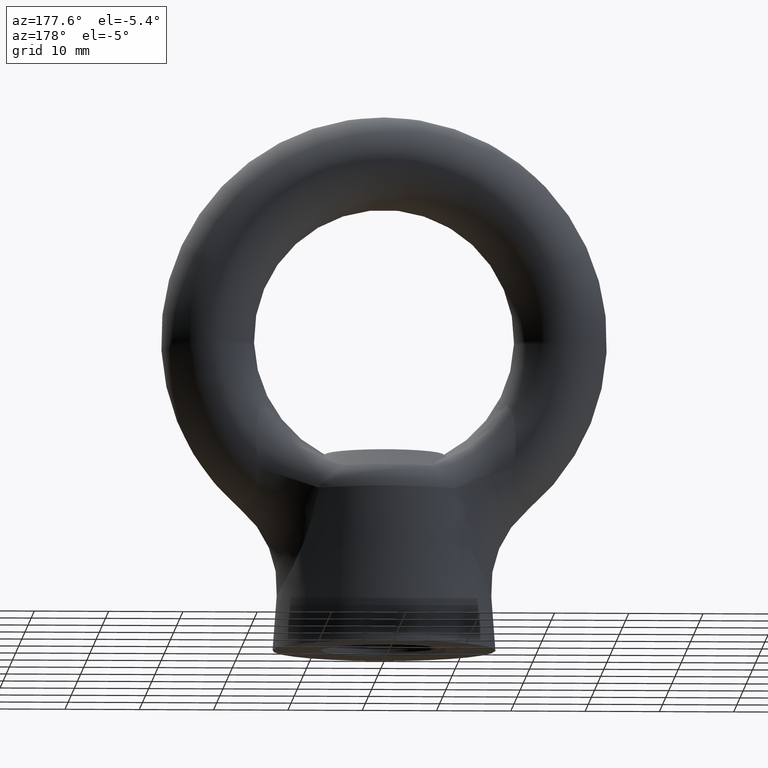
[diagram: clean part render]
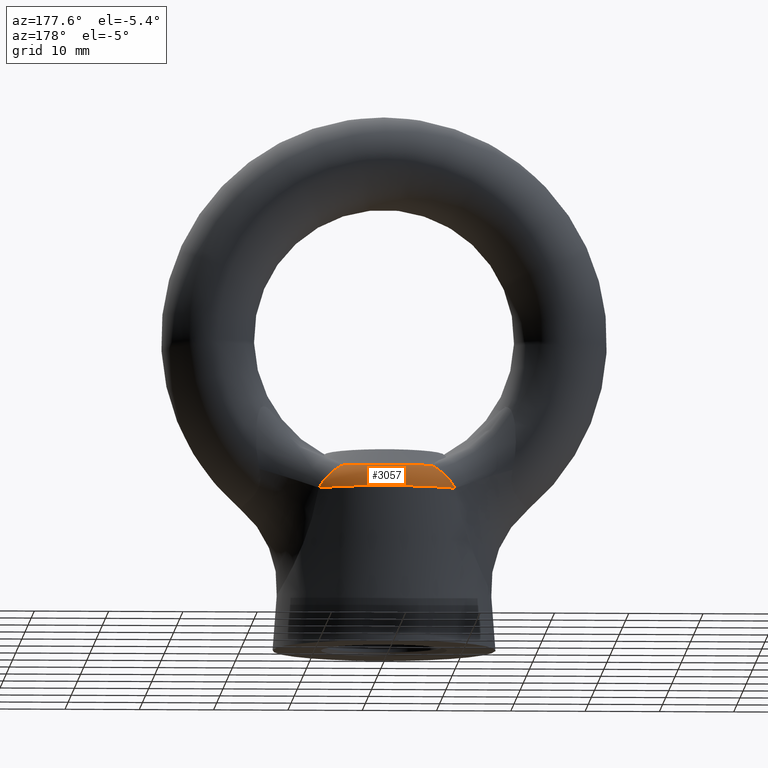
[diagram: same view with one face highlighted and labeled with its STEP entity id]
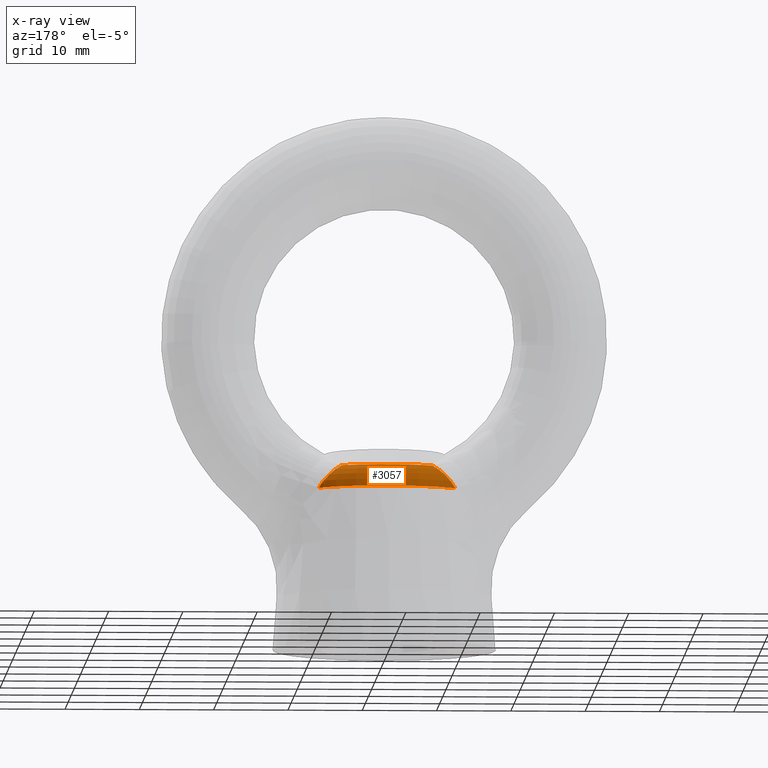
[diagram: x-ray of the same camera — body ghosted, the highlighted face saturated]
A machine part, auxiliary view. The second image highlights one B-rep face of the part: STEP entity #3057.
The next image is the same camera in x-ray: the body ghosted, the highlighted face saturated — about 0% of this face is hidden behind the body in this view.
In plain terms, the highlighted toroidal blend (fillet) surface has major radius 9.4111 mm and minor (blend) radius 4 mm.
Its self-contained STEP definition (entity closure, byte-faithful):
#2033 = CARTESIAN_POINT ( 'NONE',  ( 0.0000000000000000000, 0.0000000000000000000, -21.26815580309095200 ) ) ;
#2035 = FACE_OUTER_BOUND ( 'NONE', #3058, .T. ) ;
#2043 = DIRECTION ( 'NONE',  ( 1.000000000000000000, 0.0000000000000000000, 0.0000000000000000000 ) ) ;
#2044 = DIRECTION ( 'NONE',  ( 0.0000000000000000000, 0.0000000000000000000, -1.000000000000000000 ) ) ;
#2045 = CARTESIAN_POINT ( 'NONE',  ( 0.0000000000000000000, 0.0000000000000000000, -20.96469496878929900 ) ) ;
#2046 = AXIS2_PLACEMENT_3D ( 'NONE', #2045, #2044, #2043 ) ;
#2047 = CIRCLE ( 'NONE', #2046, 13.39953980184924000 ) ;
#2048 = CARTESIAN_POINT ( 'NONE',  ( -6.091302224946269400, 9.873597760385759900, -17.92113412167020000 ) ) ;
#2055 = CARTESIAN_POINT ( 'NONE',  ( -6.091302224946269400, 9.873597760385759900, -17.92113412167020000 ) ) ;
#2056 = CARTESIAN_POINT ( 'NONE',  ( -6.397393152722095500, 10.00106408607315000, -18.09729728697028900 ) ) ;
#2057 = CARTESIAN_POINT ( 'NONE',  ( -6.701572327747802800, 10.08959833450724900, -18.30061343297327900 ) ) ;
#2058 = CARTESIAN_POINT ( 'NONE',  ( -7.285602031763319000, 10.19767155345188700, -18.74639681234385300 ) ) ;
#2059 = CARTESIAN_POINT ( 'NONE',  ( -7.570722019595314700, 10.21761305693335900, -18.99314622535859300 ) ) ;
#2060 = CARTESIAN_POINT ( 'NONE',  ( -8.101800909187010900, 10.19242582766668000, -19.51362963531476800 ) ) ;
#2061 = CARTESIAN_POINT ( 'NONE',  ( -8.348748441032805400, 10.14810822957244500, -19.78733680110206400 ) ) ;
#2062 = CARTESIAN_POINT ( 'NONE',  ( -8.803341005879982400, 9.997566642364468200, -20.36386119696704400 ) ) ;
#2063 = CARTESIAN_POINT ( 'NONE',  ( -9.005828050559891600, 9.892903077930290200, -20.66007135391228600 ) ) ;
#2064 = CARTESIAN_POINT ( 'NONE',  ( -9.180284082713130900, 9.760637840941839700, -20.96469496878929900 ) ) ;
#2066 = B_SPLINE_CURVE_WITH_KNOTS ( 'NONE', 3,
 ( #2113, #2112, #2111, #2110, #2109, #2108, #2107, #2106, #2105, #2104, #2103, #2102 ),
 .UNSPECIFIED., .F., .F.,
 ( 4, 2, 2, 2, 2, 4 ),
 ( 0.0000000000000000000, 0.001122599244185214300, 0.002245198488370428600, 0.002806498110463038600, 0.003367797732555648600, 0.004490396976740872900 ),
 .UNSPECIFIED. ) ;
#2067 = B_SPLINE_CURVE_WITH_KNOTS ( 'NONE', 3,
 ( #2064, #2063, #2062, #2061, #2060, #2059, #2058, #2057, #2056, #2055 ),
 .UNSPECIFIED., .F., .F.,
 ( 4, 2, 2, 2, 4 ),
 ( 3.878959614448864200E-018, 0.001119428802800174000, 0.002238857605600344100, 0.003358286408400516400, 0.004477715211200688200 ),
 .UNSPECIFIED. ) ;
#2068 = DIRECTION ( 'NONE',  ( 1.000000000000000000, 0.0000000000000000000, 0.0000000000000000000 ) ) ;
#2069 = DIRECTION ( 'NONE',  ( 0.0000000000000000000, 0.0000000000000000000, 1.000000000000000000 ) ) ;
#2070 = AXIS2_PLACEMENT_3D ( 'NONE', #2033, #2069, #2068 ) ;
#2071 = TOROIDAL_SURFACE ( 'NONE', #2070, 9.411067472492430100, 4.000000000000000000 ) ;
#2102 = CARTESIAN_POINT ( 'NONE',  ( 9.180284082713130900, 9.760637840941839700, -20.96469496878929900 ) ) ;
#2103 = CARTESIAN_POINT ( 'NONE',  ( 9.005399087260771700, 9.893228299888598100, -20.65932232649706200 ) ) ;
#2104 = CARTESIAN_POINT ( 'NONE',  ( 8.804103475610631300, 9.996923575818149400, -20.36524088649833800 ) ) ;
#2105 = CARTESIAN_POINT ( 'NONE',  ( 8.467294671888829800, 10.10904152639592200, -19.93747822322002200 ) ) ;
#2106 = CARTESIAN_POINT ( 'NONE',  ( 8.349122908357651700, 10.13912403361860200, -19.79717009406563800 ) ) ;
#2107 = CARTESIAN_POINT ( 'NONE',  ( 8.100849187908732300, 10.18396007736597900, -19.52098755213804500 ) ) ;
#2108 = CARTESIAN_POINT ( 'NONE',  ( 7.970793117943436800, 10.19857361528725400, -19.38529932743910300 ) ) ;
#2109 = CARTESIAN_POINT ( 'NONE',  ( 7.571899037100132900, 10.21768699970304100, -18.99417334980136800 ) ) ;
#2110 = CARTESIAN_POINT ( 'NONE',  ( 7.291590021149956700, 10.19852608380935300, -18.75119126987755500 ) ) ;
#2111 = CARTESIAN_POINT ( 'NONE',  ( 6.702326800673501900, 10.08998859543196500, -18.30096796885172600 ) ) ;
#2112 = CARTESIAN_POINT ( 'NONE',  ( 6.398128055171234500, 10.00137012361438800, -18.09772024214432700 ) ) ;
#2113 = CARTESIAN_POINT ( 'NONE',  ( 6.091302224946269400, 9.873597760385751000, -17.92113412167020000 ) ) ;
#2946 = VERTEX_POINT ( 'NONE', #4211 ) ;
#2984 = EDGE_CURVE ( 'NONE', #3159, #3045, #4225, .T. ) ;
#2987 = VERTEX_POINT ( 'NONE', #4154 ) ;
#3045 = VERTEX_POINT ( 'NONE', #2048 ) ;
#3048 = EDGE_CURVE ( 'NONE', #2987, #2946, #2047, .T. ) ;
#3057 = ADVANCED_FACE ( 'NONE', ( #2035 ), #2071, .T. ) ;
#3058 = EDGE_LOOP ( 'NONE', ( #3059, #3060, #3062, #3063 ) ) ;
#3059 = ORIENTED_EDGE ( 'NONE', *, *, #3048, .F. ) ;
#3060 = ORIENTED_EDGE ( 'NONE', *, *, #3061, .T. ) ;
#3061 = EDGE_CURVE ( 'NONE', #2987, #3045, #2067, .T. ) ;
#3062 = ORIENTED_EDGE ( 'NONE', *, *, #2984, .F. ) ;
#3063 = ORIENTED_EDGE ( 'NONE', *, *, #3064, .T. ) ;
#3064 = EDGE_CURVE ( 'NONE', #3159, #2946, #2066, .T. ) ;
#3159 = VERTEX_POINT ( 'NONE', #14938 ) ;
#4154 = CARTESIAN_POINT ( 'NONE',  ( -9.180284082713130900, 9.760637840941839700, -20.96469496878929900 ) ) ;
#4211 = CARTESIAN_POINT ( 'NONE',  ( 9.180284082713130900, 9.760637840941839700, -20.96469496878929900 ) ) ;
#4221 = DIRECTION ( 'NONE',  ( 1.000000000000000000, 0.0000000000000000000, 0.0000000000000000000 ) ) ;
#4222 = DIRECTION ( 'NONE',  ( 0.0000000000000000000, 0.0000000000000000000, 1.000000000000000000 ) ) ;
#4223 = CARTESIAN_POINT ( 'NONE',  ( 0.0000000000000000000, 0.0000000000000000000, -17.92113412167020000 ) ) ;
#4224 = AXIS2_PLACEMENT_3D ( 'NONE', #4223, #4222, #4221 ) ;
#4225 = CIRCLE ( 'NONE', #4224, 11.60137472584736100 ) ;
#14938 = CARTESIAN_POINT ( 'NONE',  ( 6.091302224946269400, 9.873597760385751000, -17.92113412167020000 ) ) ;